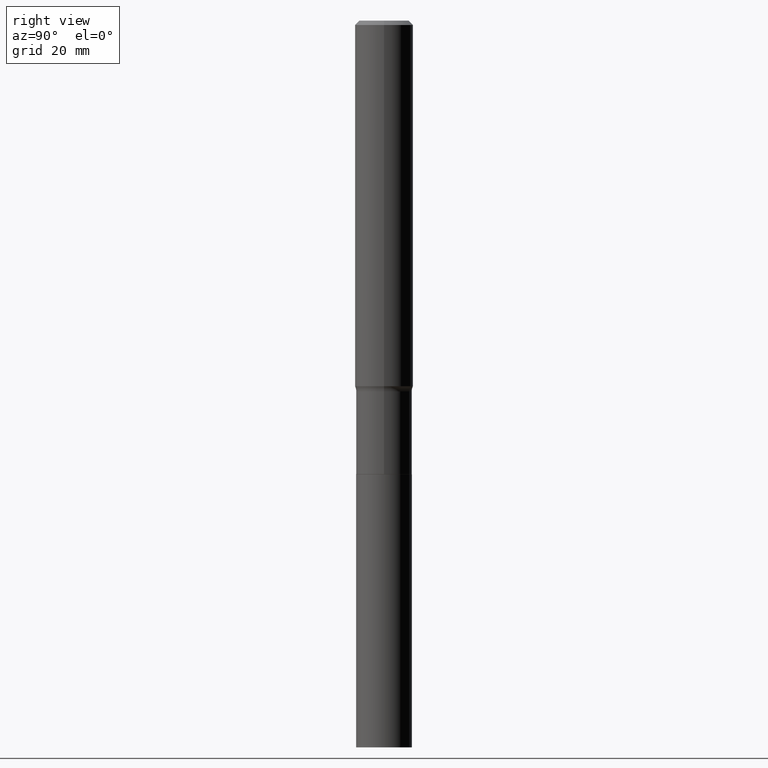
[diagram: clean part render]
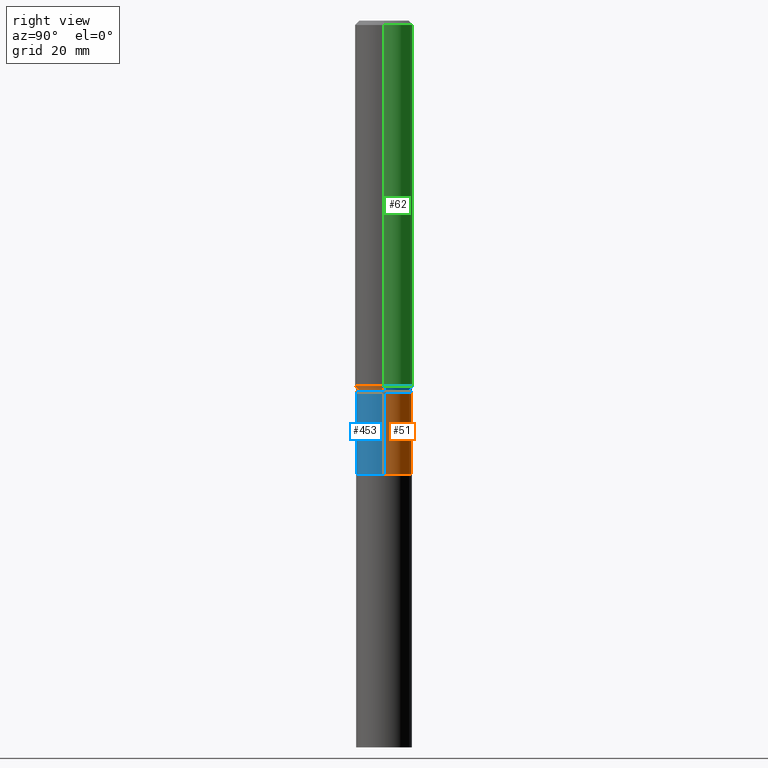
[diagram: same view with three faces highlighted in distinct colors, each labeled with its STEP entity id]
A machine part, right view with three faces highlighted in distinct colors.
Their STEP definitions:

[orange] entity #51 — the highlighted cylindrical surface (edge-blend (fillet) strip) has radius 4.8006 mm, axis along (-0, 0, 1).
#11 = CARTESIAN_POINT ( 'NONE',  ( 6.139593984808404623E-29, -8.765713049299602396E-15, -2.510600000000000165 ) ) ;
#25 = CARTESIAN_POINT ( 'NONE',  ( 0.1889999999999999736, -1.204142084140223318E-14, -3.070799999999999308 ) ) ;
#33 = FACE_OUTER_BOUND ( 'NONE', #41, .T. ) ;
#36 = DIRECTION ( 'NONE',  ( 1.000000000000000000, -6.982962677686266711E-15, 4.876176775795935793E-29 ) ) ;
#41 = EDGE_LOOP ( 'NONE', ( #46, #105, #410, #411 ) ) ;
#46 = ORIENTED_EDGE ( 'NONE', *, *, #461, .T. ) ;
#51 = ADVANCED_FACE ( 'NONE', ( #33 ), #215, .T. ) ;
#55 = VERTEX_POINT ( 'NONE', #25 ) ;
#64 = CIRCLE ( 'NONE', #117, 0.1889999999999999736 ) ;
#76 = DIRECTION ( 'NONE',  ( -2.445468806185136597E-29, 3.491481338843145583E-15, 1.000000000000000000 ) ) ;
#104 = CARTESIAN_POINT ( 'NONE',  ( -0.1889999999999999736, -8.400751201722976017E-15, -3.070799999999999308 ) ) ;
#105 = ORIENTED_EDGE ( 'NONE', *, *, #163, .T. ) ;
#117 = AXIS2_PLACEMENT_3D ( 'NONE', #386, #76, #210 ) ;
#120 = CARTESIAN_POINT ( 'NONE',  ( -0.1889999999999999458, 1.342925770586588966E-15, -9.296787320581769859E-30 ) ) ;
#132 = CARTESIAN_POINT ( 'NONE',  ( -0.1889999999999999181, -8.400751201722976017E-15, -2.510600000000000165 ) ) ;
#144 = VECTOR ( 'NONE', #175, 39.37007874015748143 ) ;
#150 = DIRECTION ( 'NONE',  ( -2.445468806185136877E-29, 3.491481338843145188E-15, 1.000000000000000000 ) ) ;
#159 = DIRECTION ( 'NONE',  ( -2.445468806185136597E-29, 3.491481338843145583E-15, 1.000000000000000000 ) ) ;
#163 = EDGE_CURVE ( 'NONE', #433, #300, #218, .T. ) ;
#174 = EDGE_CURVE ( 'NONE', #55, #295, #382, .T. ) ;
#175 = DIRECTION ( 'NONE',  ( -2.445468806185136877E-29, 3.491481338843145188E-15, 1.000000000000000000 ) ) ;
#210 = DIRECTION ( 'NONE',  ( 1.000000000000000000, -6.982962677686266711E-15, 0.000000000000000000 ) ) ;
#215 = CYLINDRICAL_SURFACE ( 'NONE', #231, 0.1889999999999999458 ) ;
#218 = LINE ( 'NONE', #120, #361 ) ;
#231 = AXIS2_PLACEMENT_3D ( 'NONE', #422, #347, #36 ) ;
#261 = EDGE_CURVE ( 'NONE', #295, #300, #299, .T. ) ;
#285 = CARTESIAN_POINT ( 'NONE',  ( 0.1889999999999999458, -1.319779946082704030E-15, 9.215974106254316519E-30 ) ) ;
#295 = VERTEX_POINT ( 'NONE', #369 ) ;
#298 = DIRECTION ( 'NONE',  ( 1.000000000000000000, -6.982962677686269077E-15, 0.000000000000000000 ) ) ;
#299 = CIRCLE ( 'NONE', #381, 0.1889999999999999181 ) ;
#300 = VERTEX_POINT ( 'NONE', #132 ) ;
#347 = DIRECTION ( 'NONE',  ( -2.445468806185136597E-29, 3.491481338843145583E-15, 1.000000000000000000 ) ) ;
#361 = VECTOR ( 'NONE', #150, 39.37007874015748143 ) ;
#369 = CARTESIAN_POINT ( 'NONE',  ( 0.1889999999999999181, -1.008549299538230643E-14, -2.510600000000000165 ) ) ;
#381 = AXIS2_PLACEMENT_3D ( 'NONE', #11, #159, #298 ) ;
#382 = LINE ( 'NONE', #285, #144 ) ;
#386 = CARTESIAN_POINT ( 'NONE',  ( 7.509545610033316400E-29, -1.072164089531952915E-14, -3.070799999999999308 ) ) ;
#410 = ORIENTED_EDGE ( 'NONE', *, *, #261, .F. ) ;
#411 = ORIENTED_EDGE ( 'NONE', *, *, #174, .F. ) ;
#422 = CARTESIAN_POINT ( 'NONE',  ( 0.000000000000000000, 0.000000000000000000, 0.000000000000000000 ) ) ;
#433 = VERTEX_POINT ( 'NONE', #104 ) ;
#461 = EDGE_CURVE ( 'NONE', #55, #433, #64, .T. ) ;

[blue] entity #453 — the highlighted cylindrical surface (edge-blend (fillet) strip) has radius 4.8006 mm, axis along (-0, 0, 1).
#25 = CARTESIAN_POINT ( 'NONE',  ( 0.1889999999999999736, -1.204142084140223318E-14, -3.070799999999999308 ) ) ;
#29 = AXIS2_PLACEMENT_3D ( 'NONE', #387, #183, #244 ) ;
#30 = CYLINDRICAL_SURFACE ( 'NONE', #265, 0.1889999999999999458 ) ;
#34 = EDGE_CURVE ( 'NONE', #300, #295, #177, .T. ) ;
#55 = VERTEX_POINT ( 'NONE', #25 ) ;
#67 = CARTESIAN_POINT ( 'NONE',  ( 6.139593984808404623E-29, -8.765713049299602396E-15, -2.510600000000000165 ) ) ;
#90 = EDGE_CURVE ( 'NONE', #433, #55, #426, .T. ) ;
#104 = CARTESIAN_POINT ( 'NONE',  ( -0.1889999999999999736, -8.400751201722976017E-15, -3.070799999999999308 ) ) ;
#120 = CARTESIAN_POINT ( 'NONE',  ( -0.1889999999999999458, 1.342925770586588966E-15, -9.296787320581769859E-30 ) ) ;
#132 = CARTESIAN_POINT ( 'NONE',  ( -0.1889999999999999181, -8.400751201722976017E-15, -2.510600000000000165 ) ) ;
#134 = ORIENTED_EDGE ( 'NONE', *, *, #34, .F. ) ;
#138 = ORIENTED_EDGE ( 'NONE', *, *, #163, .F. ) ;
#144 = VECTOR ( 'NONE', #175, 39.37007874015748143 ) ;
#150 = DIRECTION ( 'NONE',  ( -2.445468806185136877E-29, 3.491481338843145188E-15, 1.000000000000000000 ) ) ;
#163 = EDGE_CURVE ( 'NONE', #433, #300, #218, .T. ) ;
#165 = EDGE_LOOP ( 'NONE', ( #138, #196, #330, #134 ) ) ;
#166 = AXIS2_PLACEMENT_3D ( 'NONE', #67, #279, #355 ) ;
#174 = EDGE_CURVE ( 'NONE', #55, #295, #382, .T. ) ;
#175 = DIRECTION ( 'NONE',  ( -2.445468806185136877E-29, 3.491481338843145188E-15, 1.000000000000000000 ) ) ;
#177 = CIRCLE ( 'NONE', #166, 0.1889999999999999181 ) ;
#183 = DIRECTION ( 'NONE',  ( -2.445468806185136597E-29, 3.491481338843145583E-15, 1.000000000000000000 ) ) ;
#196 = ORIENTED_EDGE ( 'NONE', *, *, #90, .T. ) ;
#218 = LINE ( 'NONE', #120, #361 ) ;
#244 = DIRECTION ( 'NONE',  ( 1.000000000000000000, -6.982962677686266711E-15, 0.000000000000000000 ) ) ;
#265 = AXIS2_PLACEMENT_3D ( 'NONE', #346, #384, #311 ) ;
#279 = DIRECTION ( 'NONE',  ( -2.445468806185136597E-29, 3.491481338843145583E-15, 1.000000000000000000 ) ) ;
#285 = CARTESIAN_POINT ( 'NONE',  ( 0.1889999999999999458, -1.319779946082704030E-15, 9.215974106254316519E-30 ) ) ;
#295 = VERTEX_POINT ( 'NONE', #369 ) ;
#300 = VERTEX_POINT ( 'NONE', #132 ) ;
#311 = DIRECTION ( 'NONE',  ( 1.000000000000000000, -6.982962677686266711E-15, 4.876176775795935793E-29 ) ) ;
#330 = ORIENTED_EDGE ( 'NONE', *, *, #174, .T. ) ;
#346 = CARTESIAN_POINT ( 'NONE',  ( 0.000000000000000000, 0.000000000000000000, 0.000000000000000000 ) ) ;
#355 = DIRECTION ( 'NONE',  ( 1.000000000000000000, -6.982962677686269077E-15, 0.000000000000000000 ) ) ;
#361 = VECTOR ( 'NONE', #150, 39.37007874015748143 ) ;
#369 = CARTESIAN_POINT ( 'NONE',  ( 0.1889999999999999181, -1.008549299538230643E-14, -2.510600000000000165 ) ) ;
#379 = FACE_OUTER_BOUND ( 'NONE', #165, .T. ) ;
#382 = LINE ( 'NONE', #285, #144 ) ;
#384 = DIRECTION ( 'NONE',  ( -2.445468806185136597E-29, 3.491481338843145583E-15, 1.000000000000000000 ) ) ;
#387 = CARTESIAN_POINT ( 'NONE',  ( 7.509545610033316400E-29, -1.072164089531952915E-14, -3.070799999999999308 ) ) ;
#426 = CIRCLE ( 'NONE', #29, 0.1889999999999999736 ) ;
#433 = VERTEX_POINT ( 'NONE', #104 ) ;
#453 = ADVANCED_FACE ( 'NONE', ( #379 ), #30, .T. ) ;

[green] entity #62 — the highlighted cylindrical surface (edge-blend (fillet) strip) has radius 5 mm, axis along (-0, 0, 1).
#4 = EDGE_CURVE ( 'NONE', #161, #79, #75, .T. ) ;
#27 = CARTESIAN_POINT ( 'NONE',  ( 0.1968500000000003303, -1.001964447059907086E-14, -2.476040232929025198 ) ) ;
#44 = VECTOR ( 'NONE', #70, 39.37007874015748143 ) ;
#57 = CARTESIAN_POINT ( 'NONE',  ( 6.055079152487310970E-29, -8.645048267496527677E-15, -2.476040232929025198 ) ) ;
#62 = ADVANCED_FACE ( 'NONE', ( #73 ), #385, .T. ) ;
#65 = CARTESIAN_POINT ( 'NONE',  ( 7.220858017463207734E-31, -1.030947152326916363E-16, -0.02952750000000018554 ) ) ;
#70 = DIRECTION ( 'NONE',  ( -2.445468806185136877E-29, 3.491481338843145188E-15, 1.000000000000000000 ) ) ;
#73 = FACE_OUTER_BOUND ( 'NONE', #203, .T. ) ;
#75 = CIRCLE ( 'NONE', #366, 0.1968500000000003303 ) ;
#79 = VERTEX_POINT ( 'NONE', #416 ) ;
#110 = VERTEX_POINT ( 'NONE', #152 ) ;
#112 = DIRECTION ( 'NONE',  ( -2.445468806185136597E-29, 3.491481338843145583E-15, 1.000000000000000000 ) ) ;
#114 = CARTESIAN_POINT ( 'NONE',  ( -0.1968500000000000250, -2.975368116020849133E-15, -0.02952750000000018554 ) ) ;
#140 = ORIENTED_EDGE ( 'NONE', *, *, #364, .T. ) ;
#148 = DIRECTION ( 'NONE',  ( 1.000000000000000000, -6.982962677686265922E-15, 0.000000000000000000 ) ) ;
#152 = CARTESIAN_POINT ( 'NONE',  ( 0.1968500000000000250, -1.477690918335233294E-15, -0.02952750000000018554 ) ) ;
#160 = EDGE_CURVE ( 'NONE', #161, #110, #290, .T. ) ;
#161 = VERTEX_POINT ( 'NONE', #27 ) ;
#172 = CARTESIAN_POINT ( 'NONE',  ( 0.000000000000000000, 0.000000000000000000, 0.000000000000000000 ) ) ;
#173 = LINE ( 'NONE', #281, #456 ) ;
#203 = EDGE_LOOP ( 'NONE', ( #275, #140, #400, #310 ) ) ;
#221 = CIRCLE ( 'NONE', #287, 0.1968500000000000250 ) ;
#251 = DIRECTION ( 'NONE',  ( 1.000000000000000000, -6.982962677686266711E-15, 4.876176775795935793E-29 ) ) ;
#268 = DIRECTION ( 'NONE',  ( 1.000000000000000000, -6.982962677686261977E-15, 0.000000000000000000 ) ) ;
#275 = ORIENTED_EDGE ( 'NONE', *, *, #4, .T. ) ;
#281 = CARTESIAN_POINT ( 'NONE',  ( -0.1968500000000001915, 1.398703375343758577E-15, -9.682923725166790684E-30 ) ) ;
#287 = AXIS2_PLACEMENT_3D ( 'NONE', #65, #412, #148 ) ;
#290 = LINE ( 'NONE', #430, #44 ) ;
#293 = AXIS2_PLACEMENT_3D ( 'NONE', #172, #112, #251 ) ;
#310 = ORIENTED_EDGE ( 'NONE', *, *, #160, .F. ) ;
#364 = EDGE_CURVE ( 'NONE', #79, #409, #173, .T. ) ;
#366 = AXIS2_PLACEMENT_3D ( 'NONE', #57, #373, #268 ) ;
#373 = DIRECTION ( 'NONE',  ( -2.445468806185136597E-29, 3.491481338843145583E-15, 1.000000000000000000 ) ) ;
#383 = EDGE_CURVE ( 'NONE', #110, #409, #221, .T. ) ;
#385 = CYLINDRICAL_SURFACE ( 'NONE', #293, 0.1968500000000001915 ) ;
#400 = ORIENTED_EDGE ( 'NONE', *, *, #383, .F. ) ;
#409 = VERTEX_POINT ( 'NONE', #114 ) ;
#412 = DIRECTION ( 'NONE',  ( -2.445468806185136597E-29, 3.491481338843145583E-15, 1.000000000000000000 ) ) ;
#416 = CARTESIAN_POINT ( 'NONE',  ( -0.1968500000000003303, -7.246344892152769101E-15, -2.476040232929025198 ) ) ;
#430 = CARTESIAN_POINT ( 'NONE',  ( 0.1968500000000001915, -1.374596203102542989E-15, 9.598753983154309266E-30 ) ) ;
#456 = VECTOR ( 'NONE', #463, 39.37007874015748143 ) ;
#463 = DIRECTION ( 'NONE',  ( -2.445468806185136877E-29, 3.491481338843145188E-15, 1.000000000000000000 ) ) ;